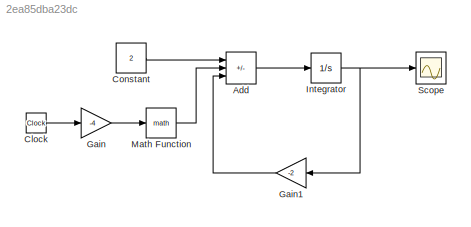
MODEL slx_2ea85dba23dc
KIND model
CONFIG AbsTol = auto
CONFIG EnableMultiTasking = off
CONFIG FixedStep = auto
CONFIG MaxStep = auto
CONFIG MinStep = auto
CONFIG RelTol = 1e-3
CONFIG SampleTimeConstraint = Unconstrained
CONFIG SolverName = VariableStepAuto
CONFIG StartTime = 0.0
CONFIG StopTime = 10.0
BLOCK [Sum] Add
  IconShape = rectangular
  Inputs = +-+
BLOCK [Clock] Clock
BLOCK [Constant] Constant
  Value = 2
BLOCK [Gain] Gain
  Gain = -4
BLOCK [Gain] Gain1
  Gain = -2
BLOCK [Integrator] Integrator
  InitialCondition = 1
BLOCK [Math] Math Function
BLOCK [Scope] Scope
  Floating = off
  NumInputPorts = 1
  ScopeSpecificationString = Simulink.scopes.TimeScopeBlockCfg('CurrentConfiguration', extmgr.ConfigurationSet(extmgr.Configuration('Core','General UI',true),extmgr.Configuration('Core','Source UI',true),extmgr.Configuration('Sources','WiredSimulink',true),extmgr.Configuration('Visuals','Time Domain',true,'SerializedDisplays',{struct('MinYLimReal','0.86082','MaxYLimReal','1.01546','YLabelReal','','MinYLimMag','0.86082','MaxYL...<+1485ch>
LINE Add:1 -> Integrator:1
LINE Clock:1 -> Gain:1
LINE Constant:1 -> Add:1
LINE Gain1:1 -> Add:3
LINE Gain:1 -> Math Function:1
NET Integrator:1 -> Gain1:1, Scope:1
LINE Math Function:1 -> Add:2
note: NET lines group one-source signal fan-out (src -> all destinations, sorted); 1:1 wires keep LINE
